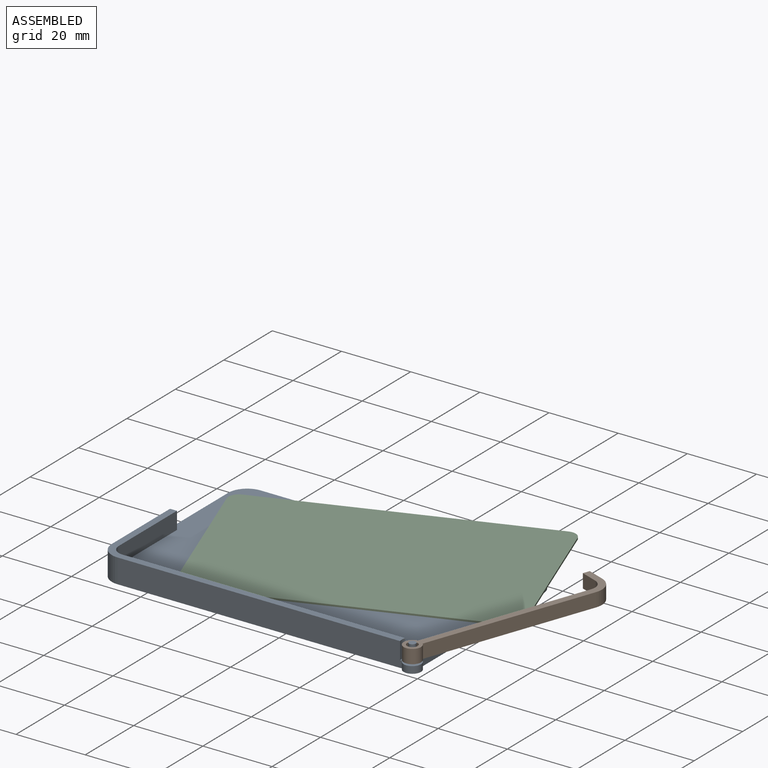
[diagram: assembled view]
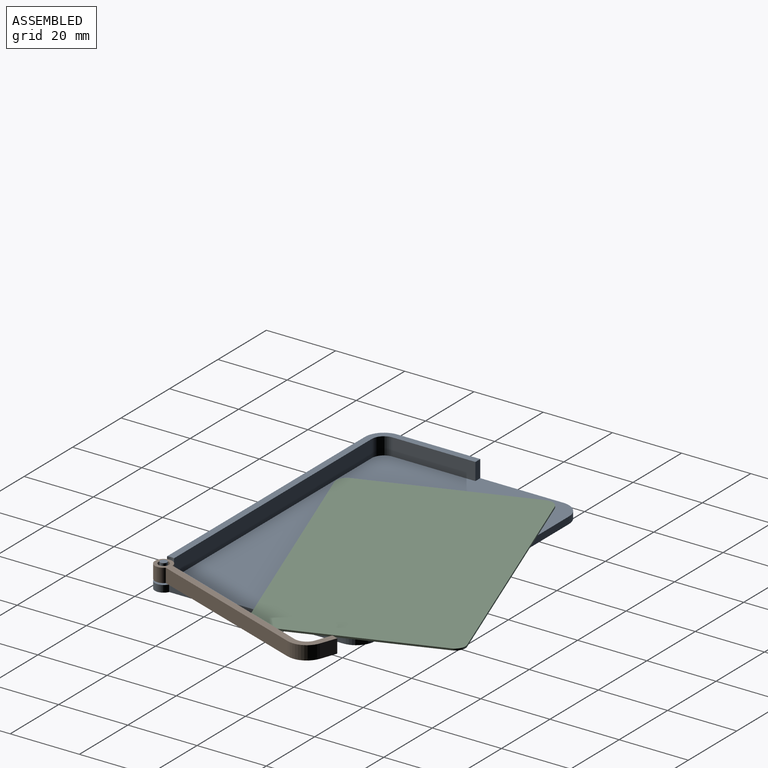
[diagram: assembled view, second angle]
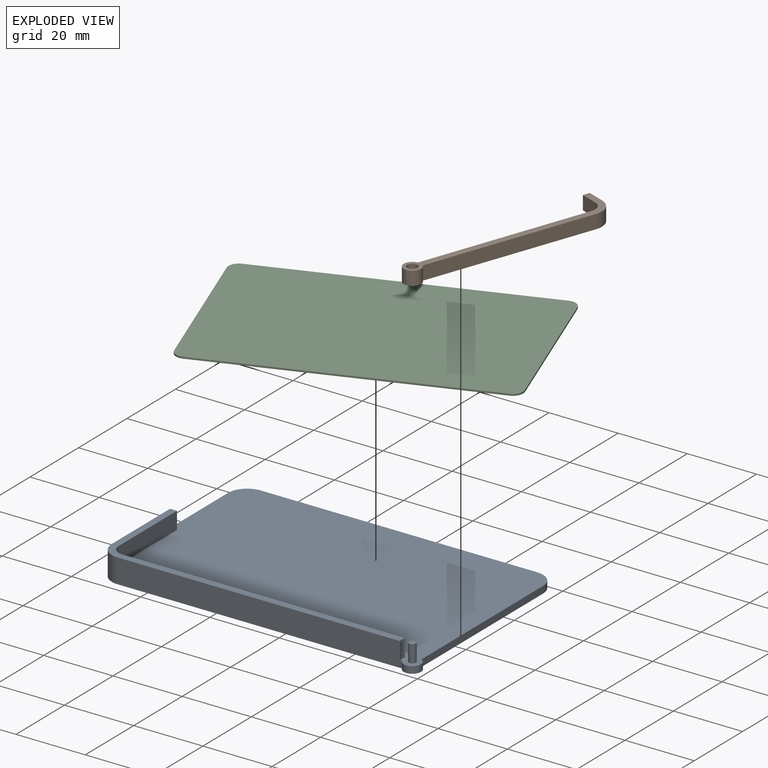
[diagram: exploded view]
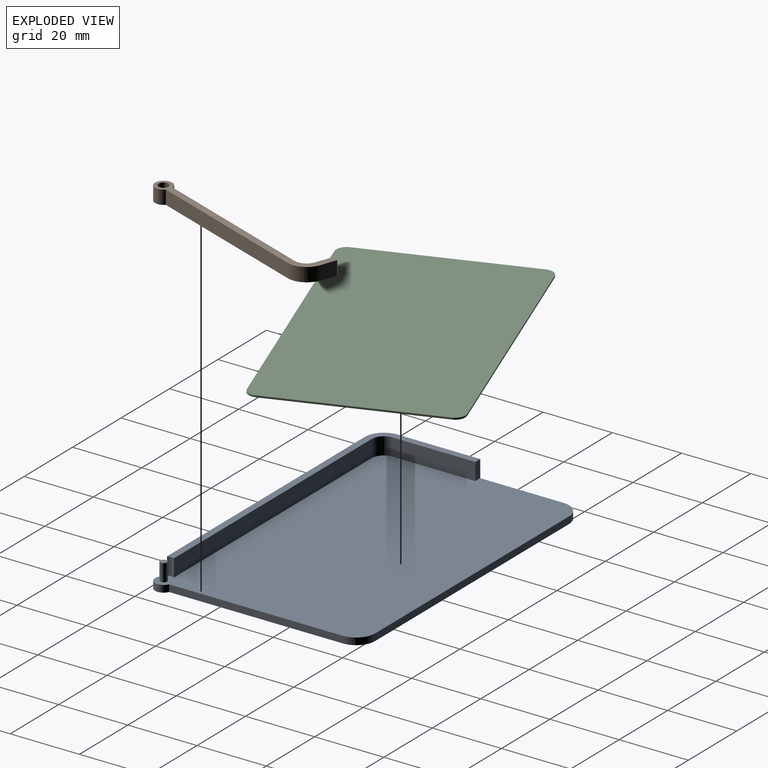
[diagram: exploded view, second angle]
ASSEMBLY  parts=3 mates=2
PART A: 18 faces, bbox 92.5x60.5x7 mm
  f0: plane 50.21x2mm, normal (1,0,0), area 100.4mm2, adj f1,f7,f8,f9
  f1: cylinder r=5.5mm len=5.5mm, axis (0,0,1), area 17.3mm2, adj f0,f2,f8,f9
  f2: plane 80x2mm, normal (0,1,0), area 160mm2, adj f1,f3,f8,f9
  f3: cylinder r=5.5mm len=5.5mm, axis (0,0,1), area 17.3mm2, adj f2,f4,f8,f9
  f4: plane 48x7mm, normal (-1,0,0), area 216mm2, adj f3,f5,f8,f9,f10,f15
  f5: cylinder r=5.5mm len=7mm, axis (0,0,1), area 60.5mm2, adj f4,f6,f8,f15
  f6: plane 82.21x7mm, normal (0,-1,0), area 572.8mm2, adj f5,f7,f8,f9,f11,f15
  f7: cylinder r=2.5mm len=4.79mm, axis (0,0,1), area 19.4mm2, adj f0,f6,f8,f9
  f8: plane 92.5x60.5mm, normal (0,0,-1), area 5358.4mm2, adj f0,f1,f2,f3,f4,f5,f6,f7
  f9: plane 92.5x60.5mm, normal (0,0,1), area 5130mm2, adj f0,f1,f2,f3,f4,f6,f7,f10
  f10: plane 5x2mm, normal (0,1,0), area 10mm2, adj f4,f9,f14,f15
  f11: cylinder r=3mm len=5mm, axis (0,0,-1), area 10.2mm2, adj f6,f9,f12,f15
  f12: plane 81.67x5mm, normal (0,1,0), area 408.4mm2, adj f9,f11,f13,f15
  f13: cylinder r=3.5mm len=5mm, axis (0,0,-1), area 27.5mm2, adj f9,f12,f14,f15
  f14: plane 24x5mm, normal (1,0,0), area 120mm2, adj f9,f10,f13,f15
  f15: plane 87.17x29.5mm, normal (0,0,1), area 225.3mm2, adj f4,f5,f6,f10,f11,f12,f13,f14
  f16: cylinder r=1mm len=5mm, axis (0,0,-1), area 31.4mm2, adj f9,f17
  f17: plane 2x2mm, normal (0,0,1), area 3.1mm2, adj f16
PART B: 11 faces, bbox 12x60.5x4 mm
  f0: plane 60.5x12mm, normal (0,0,1), area 136.8mm2, adj f1,f2,f3,f4,f5,f6,f8,f9
  f1: plane 5x4mm, normal (0,-1,0), area 20mm2, adj f0,f2,f6,f7
  f2: cylinder r=3.5mm len=4mm, axis (0,0,-1), area 22mm2, adj f0,f1,f3,f7
  f3: plane 50.21x4mm, normal (-1,0,0), area 200.8mm2, adj f0,f2,f4,f7
  f4: cylinder r=2.5mm len=5mm, axis (0,0,-1), area 54.6mm2, adj f0,f3,f5,f7
  f5: plane 50.21x4mm, normal (1,0,0), area 200.8mm2, adj f0,f4,f7,f9
  f6: plane 4x2mm, normal (-1,0,0), area 8mm2, adj f0,f1,f7,f10
  f7: plane 60.5x12mm, normal (0,0,-1), area 136.8mm2, adj f1,f2,f3,f4,f5,f6,f8,f9
  f8: cylinder r=1.5mm len=4mm, axis (0,0,-1), area 37.7mm2, adj f0,f7
  f9: cylinder r=5.5mm len=5.5mm, axis (0,0,-1), area 34.6mm2, adj f0,f5,f7,f10
  f10: plane 5x4mm, normal (0,1,0), area 20mm2, adj f0,f6,f7,f9
PART C: 10 faces, bbox 86x54x0.5 mm
  f0: plane 48x0.5mm, normal (-1,0,0), area 24mm2, adj f1,f7,f8,f9
  f1: cylinder r=3mm len=3mm, axis (0,0,-1), area 2.4mm2, adj f0,f2,f8,f9
  f2: plane 80x0.5mm, normal (0,-1,0), area 40mm2, adj f1,f3,f8,f9
  f3: cylinder r=3mm len=3mm, axis (0,0,-1), area 2.4mm2, adj f2,f4,f8,f9
  f4: plane 48x0.5mm, normal (1,0,0), area 24mm2, adj f3,f5,f8,f9
  f5: cylinder r=3mm len=3mm, axis (0,0,-1), area 2.4mm2, adj f4,f6,f8,f9
  f6: plane 80x0.5mm, normal (0,1,0), area 40mm2, adj f5,f7,f8,f9
  f7: cylinder r=3mm len=3mm, axis (0,0,-1), area 2.4mm2, adj f0,f6,f8,f9
  f8: plane 86x54mm, normal (0,0,1), area 4636.3mm2, adj f0,f1,f2,f3,f4,f5,f6,f7
  f9: plane 86x54mm, normal (0,0,-1), area 4636.3mm2, adj f0,f1,f2,f3,f4,f5,f6,f7
PLACE A at identity fixed
PLACE B rot(axis=(0,0,-1),19.9deg) t=(12.37,13.45,0)mm
PLACE C rot(axis=(0,0,1),20deg) t=(5.2,12.54,0)mm
MATE cylindrical A.f7 <-> B.f4  axis (0,0,1) through (44.5,-28.5,5)mm
MATE planar C.f9 <-> A.f9  axis (0,0,-1) through (-4.03,37.91,0)mm
